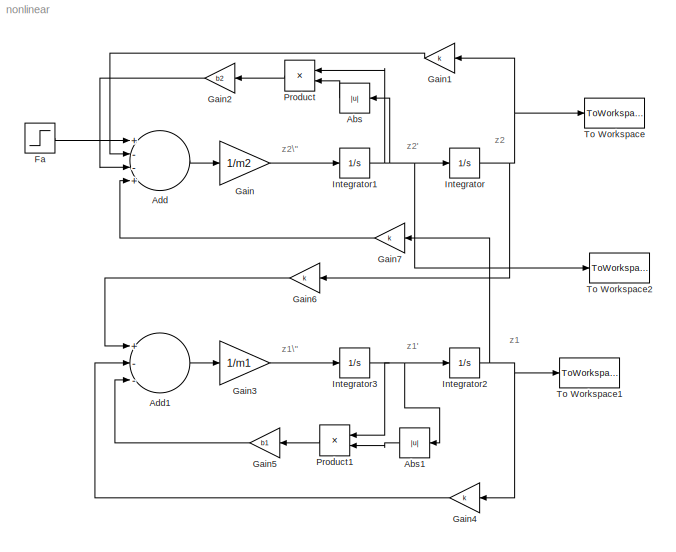
MODEL nonlinear
KIND model
BLOCK [Abs] Abs
  SaturateOnIntegerOverflow = off
BLOCK [Abs] Abs1
  SaturateOnIntegerOverflow = off
BLOCK [Sum] Add
  InputSameDT = off
  Inputs = +--+
  Ports = [4, 1]
  SaturateOnIntegerOverflow = off
BLOCK [Sum] Add1
  InputSameDT = off
  Inputs = +--
  Ports = [3, 1]
  SaturateOnIntegerOverflow = off
BLOCK [Step] Fa
  After = fa
  SampleTime = 0
  Time = 0
BLOCK [Gain] Gain
  Gain = 1/m2
  SaturateOnIntegerOverflow = off
BLOCK [Gain] Gain1
  Gain = k
  SaturateOnIntegerOverflow = off
BLOCK [Gain] Gain2
  Gain = b2
  SaturateOnIntegerOverflow = off
BLOCK [Gain] Gain3
  Gain = 1/m1
  SaturateOnIntegerOverflow = off
BLOCK [Gain] Gain4
  Gain = k
  SaturateOnIntegerOverflow = off
BLOCK [Gain] Gain5
  Gain = b1
  SaturateOnIntegerOverflow = off
BLOCK [Gain] Gain6
  Gain = k
  SaturateOnIntegerOverflow = off
BLOCK [Gain] Gain7
  Gain = k
  SaturateOnIntegerOverflow = off
BLOCK [Integrator] Integrator
  IgnoreLimit = off
  Ports = [1, 1]
BLOCK [Integrator] Integrator1
  IgnoreLimit = off
  Ports = [1, 1]
BLOCK [Integrator] Integrator2
  IgnoreLimit = off
  Ports = [1, 1]
BLOCK [Integrator] Integrator3
  IgnoreLimit = off
  Ports = [1, 1]
BLOCK [Product] Product
  InputSameDT = off
  OutDataTypeMode = Inherit via internal rule
  Ports = [2, 1]
  SaturateOnIntegerOverflow = off
BLOCK [Product] Product1
  InputSameDT = off
  OutDataTypeMode = Inherit via internal rule
  Ports = [2, 1]
  SaturateOnIntegerOverflow = off
BLOCK [ToWorkspace] To Workspace
  MaxDataPoints = inf
  SampleTime = -1
  SaveFormat = Array
  VariableName = z2
BLOCK [ToWorkspace] To Workspace1
  MaxDataPoints = inf
  SampleTime = -1
  SaveFormat = Array
  VariableName = z1
BLOCK [ToWorkspace] To Workspace2
  MaxDataPoints = inf
  SampleTime = -1
  SaveFormat = Array
  VariableName = z2_prime
ANNOTATION (root): z1
ANNOTATION (root): z1'
ANNOTATION (root): z1\"
ANNOTATION (root): z2
ANNOTATION (root): z2'
ANNOTATION (root): z2\"
LINE Abs1:1 -> Product1:2
LINE Abs:1 -> Product:2
LINE Add1:1 -> Gain3:1
LINE Add:1 -> Gain:1
LINE Fa:1 -> Add:1
LINE Gain1:1 -> Add:2
LINE Gain2:1 -> Add:3
LINE Gain3:1 -> Integrator3:1
LINE Gain4:1 -> Add1:2
LINE Gain5:1 -> Add1:3
LINE Gain6:1 -> Add1:1
LINE Gain7:1 -> Add:4
LINE Gain:1 -> Integrator1:1
NET Integrator1:1 -> Abs:1, Integrator:1, Product:1, To Workspace2:1
NET Integrator2:1 -> Gain4:1, Gain7:1, To Workspace1:1
NET Integrator3:1 -> Abs1:1, Integrator2:1, Product1:1
NET Integrator:1 -> Gain1:1, Gain6:1, To Workspace:1
LINE Product1:1 -> Gain5:1
LINE Product:1 -> Gain2:1
note: NET lines group one-source signal fan-out (src -> all destinations, sorted); 1:1 wires keep LINE
